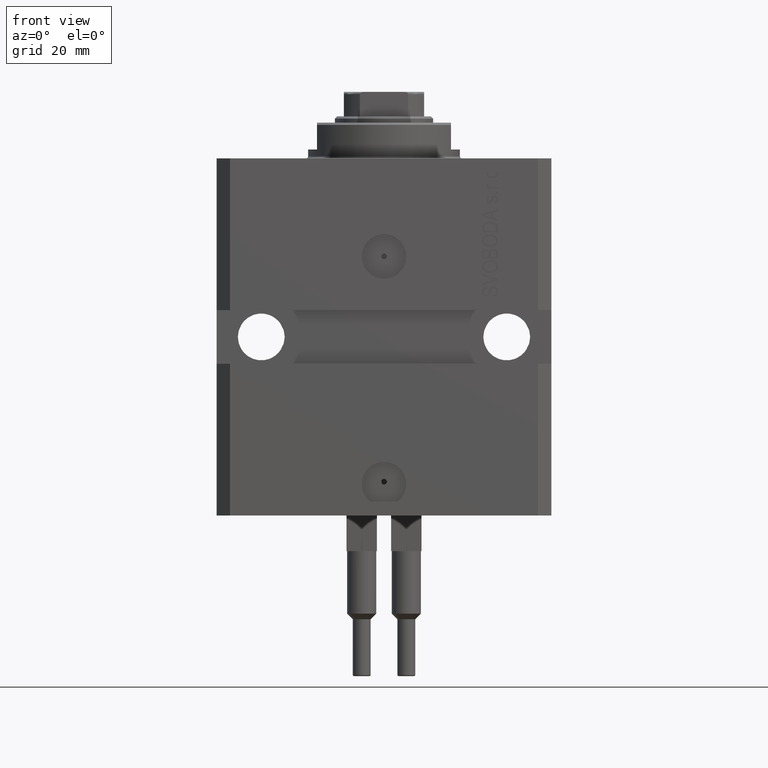
[diagram: clean part render]
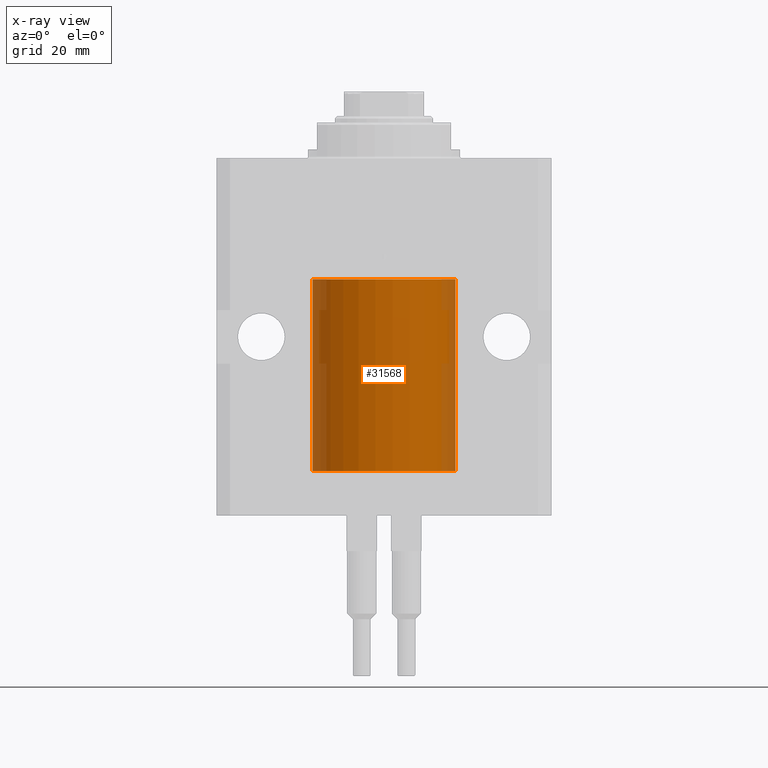
[diagram: x-ray — body ghosted, one internal face saturated and labeled with its STEP entity id]
A machine part, front view, then the same camera in x-ray: the body is ghosted and one INTERNAL B-rep face — a face not visible from any outside direction — is saturated and labeled: STEP entity #31568.
In plain terms, the highlighted cylindrical surface (partial cylindrical patch) has radius 16 mm, axis along (0, 0, 1).
Its self-contained STEP definition (entity closure, byte-faithful):
#281 = CARTESIAN_POINT ( 'NONE',  ( 15.99707785788560521, -0.3267997233067475582, -68.55715215276643448 ) ) ;
#681 = LINE ( 'NONE', #15604, #30585 ) ;
#820 = EDGE_CURVE ( 'NONE', #20655, #11886, #42044, .T. ) ;
#1010 = ORIENTED_EDGE ( 'NONE', *, *, #31306, .F. ) ;
#1942 = CARTESIAN_POINT ( 'NONE',  ( 16.00000000000013145, 3.665532692826917502E-13, -67.37499999999657518 ) ) ;
#2326 = ORIENTED_EDGE ( 'NONE', *, *, #820, .T. ) ;
#2854 = CARTESIAN_POINT ( 'NONE',  ( 16.00000000000013145, 3.665532692826917502E-13, -67.37499999999657518 ) ) ;
#3302 = AXIS2_PLACEMENT_3D ( 'NONE', #23651, #27982, #9195 ) ;
#3726 = VERTEX_POINT ( 'NONE', #18518 ) ;
#5725 = ORIENTED_EDGE ( 'NONE', *, *, #45014, .F. ) ;
#5906 = CARTESIAN_POINT ( 'NONE',  ( 16.00000000000000000, 0.000000000000000000, -27.10000000000000142 ) ) ;
#6450 = CARTESIAN_POINT ( 'NONE',  ( 15.98778830858102040, -0.6250000000001221245, -67.83501479319284044 ) ) ;
#6926 = CARTESIAN_POINT ( 'NONE',  ( 16.00000000000000355, -0.1632201307031984627, -67.37499999999981526 ) ) ;
#7901 = CARTESIAN_POINT ( 'NONE',  ( 16.00000000000000000, 0.000000000000000000, -70.09999999999999432 ) ) ;
#9195 = DIRECTION ( 'NONE',  ( 1.000000000000000000, 0.000000000000000000, 0.000000000000000000 ) ) ;
#11886 = VERTEX_POINT ( 'NONE', #18224 ) ;
#12400 = DIRECTION ( 'NONE',  ( 1.000000000000000000, 0.000000000000000000, 0.000000000000000000 ) ) ;
#13907 = ORIENTED_EDGE ( 'NONE', *, *, #42326, .F. ) ;
#14441 = ORIENTED_EDGE ( 'NONE', *, *, #18900, .T. ) ;
#14622 = ORIENTED_EDGE ( 'NONE', *, *, #34433, .T. ) ;
#14637 = CARTESIAN_POINT ( 'NONE',  ( 15.98778830858101685, -0.6250000000001221245, -68.00000000000000000 ) ) ;
#15604 = CARTESIAN_POINT ( 'NONE',  ( -16.00000000000000000, 1.959434878635765131E-15, -70.09999999999999432 ) ) ;
#15965 = VERTEX_POINT ( 'NONE', #25191 ) ;
#16334 = CARTESIAN_POINT ( 'NONE',  ( 15.99070553365076996, -0.5573460204199470747, -68.32646897863006075 ) ) ;
#16995 = LINE ( 'NONE', #24726, #17130 ) ;
#17130 = VECTOR ( 'NONE', #39455, 1000.000000000000000 ) ;
#17723 = VERTEX_POINT ( 'NONE', #42060 ) ;
#17947 = DIRECTION ( 'NONE',  ( 1.000000000000000000, 0.000000000000000000, 0.000000000000000000 ) ) ;
#18224 = CARTESIAN_POINT ( 'NONE',  ( 16.00000000000000000, -1.835653844722709729E-15, -68.62500000000000000 ) ) ;
#18518 = CARTESIAN_POINT ( 'NONE',  ( 16.00000000000000000, 0.000000000000000000, -70.09999999999999432 ) ) ;
#18643 = DIRECTION ( 'NONE',  ( 0.000000000000000000, 0.000000000000000000, 1.000000000000000000 ) ) ;
#18692 = VERTEX_POINT ( 'NONE', #5906 ) ;
#18900 = EDGE_CURVE ( 'NONE', #17723, #15965, #681, .T. ) ;
#19272 = EDGE_LOOP ( 'NONE', ( #5725, #14441, #22778, #1010, #14622, #2326, #13907 ) ) ;
#19848 = FACE_OUTER_BOUND ( 'NONE', #19272, .T. ) ;
#20655 = VERTEX_POINT ( 'NONE', #43501 ) ;
#21226 = VERTEX_POINT ( 'NONE', #1942 ) ;
#22778 = ORIENTED_EDGE ( 'NONE', *, *, #33672, .T. ) ;
#22819 = DIRECTION ( 'NONE',  ( -0.000000000000000000, -0.000000000000000000, 1.000000000000000000 ) ) ;
#23651 = CARTESIAN_POINT ( 'NONE',  ( 0.000000000000000000, 0.000000000000000000, -70.09999999999999432 ) ) ;
#24726 = CARTESIAN_POINT ( 'NONE',  ( 16.00000000000000000, 0.000000000000000000, -70.09999999999999432 ) ) ;
#25025 = CARTESIAN_POINT ( 'NONE',  ( 15.99071289786271954, -0.5571474671814620194, -67.67319665488822977 ) ) ;
#25191 = CARTESIAN_POINT ( 'NONE',  ( -16.00000000000000000, 1.959434878635765131E-15, -27.10000000000000142 ) ) ;
#26044 = CARTESIAN_POINT ( 'NONE',  ( 16.00000000000000000, -0.1650734421240358518, -68.62500000000004263 ) ) ;
#26944 = CARTESIAN_POINT ( 'NONE',  ( 15.98778830858101685, -0.6250000000001221245, -68.00000000000000000 ) ) ;
#27574 = DIRECTION ( 'NONE',  ( -0.000000000000000000, -0.000000000000000000, 1.000000000000000000 ) ) ;
#27870 = AXIS2_PLACEMENT_3D ( 'NONE', #43750, #18643, #17947 ) ;
#27982 = DIRECTION ( 'NONE',  ( 0.000000000000000000, 0.000000000000000000, 1.000000000000000000 ) ) ;
#30585 = VECTOR ( 'NONE', #33938, 1000.000000000000000 ) ;
#31306 = EDGE_CURVE ( 'NONE', #21226, #18692, #33683, .T. ) ;
#31568 = ADVANCED_FACE ( 'NONE', ( #19848 ), #45923, .F. ) ;
#33672 = EDGE_CURVE ( 'NONE', #15965, #18692, #35590, .T. ) ;
#33683 = LINE ( 'NONE', #7901, #42452 ) ;
#33938 = DIRECTION ( 'NONE',  ( -0.000000000000000000, -0.000000000000000000, 1.000000000000000000 ) ) ;
#34433 = EDGE_CURVE ( 'NONE', #21226, #20655, #35366, .T. ) ;
#34747 = AXIS2_PLACEMENT_3D ( 'NONE', #37978, #27574, #12400 ) ;
#35366 = B_SPLINE_CURVE_WITH_KNOTS ( 'NONE', 3,
 ( #2854, #6926, #36586, #25025, #6450, #14637 ),
 .UNSPECIFIED., .F., .F.,
 ( 4, 2, 4 ),
 ( 0.001954221322144537518, 0.002442922366142198307, 0.002931623410139858662 ),
 .UNSPECIFIED. ) ;
#35590 = CIRCLE ( 'NONE', #27870, 16.00000000000000000 ) ;
#36586 = CARTESIAN_POINT ( 'NONE',  ( 15.99708487730508821, -0.3264777333248483626, -67.44266166809920549 ) ) ;
#37978 = CARTESIAN_POINT ( 'NONE',  ( 0.000000000000000000, 0.000000000000000000, -70.09999999999999432 ) ) ;
#38065 = CARTESIAN_POINT ( 'NONE',  ( 15.98778830858102040, -0.6250000000001221245, -68.16481193282331219 ) ) ;
#39455 = DIRECTION ( 'NONE',  ( -0.000000000000000000, -0.000000000000000000, 1.000000000000000000 ) ) ;
#42044 = B_SPLINE_CURVE_WITH_KNOTS ( 'NONE', 3,
 ( #26944, #38065, #16334, #281, #26044, #45538 ),
 .UNSPECIFIED., .F., .F.,
 ( 4, 2, 4 ),
 ( 0.002931623410139858662, 0.003419811200989293816, 0.003907998991838729404 ),
 .UNSPECIFIED. ) ;
#42060 = CARTESIAN_POINT ( 'NONE',  ( -16.00000000000000000, 1.959434878635765131E-15, -70.09999999999999432 ) ) ;
#42326 = EDGE_CURVE ( 'NONE', #3726, #11886, #16995, .T. ) ;
#42452 = VECTOR ( 'NONE', #22819, 1000.000000000000000 ) ;
#42561 = CIRCLE ( 'NONE', #3302, 16.00000000000000000 ) ;
#43501 = CARTESIAN_POINT ( 'NONE',  ( 15.98778830858101685, -0.6250000000001221245, -68.00000000000000000 ) ) ;
#43750 = CARTESIAN_POINT ( 'NONE',  ( 0.000000000000000000, 0.000000000000000000, -27.10000000000000142 ) ) ;
#45014 = EDGE_CURVE ( 'NONE', #17723, #3726, #42561, .T. ) ;
#45538 = CARTESIAN_POINT ( 'NONE',  ( 16.00000000000000000, -1.835653844722709729E-15, -68.62500000000000000 ) ) ;
#45923 = CYLINDRICAL_SURFACE ( 'NONE', #34747, 16.00000000000000000 ) ;